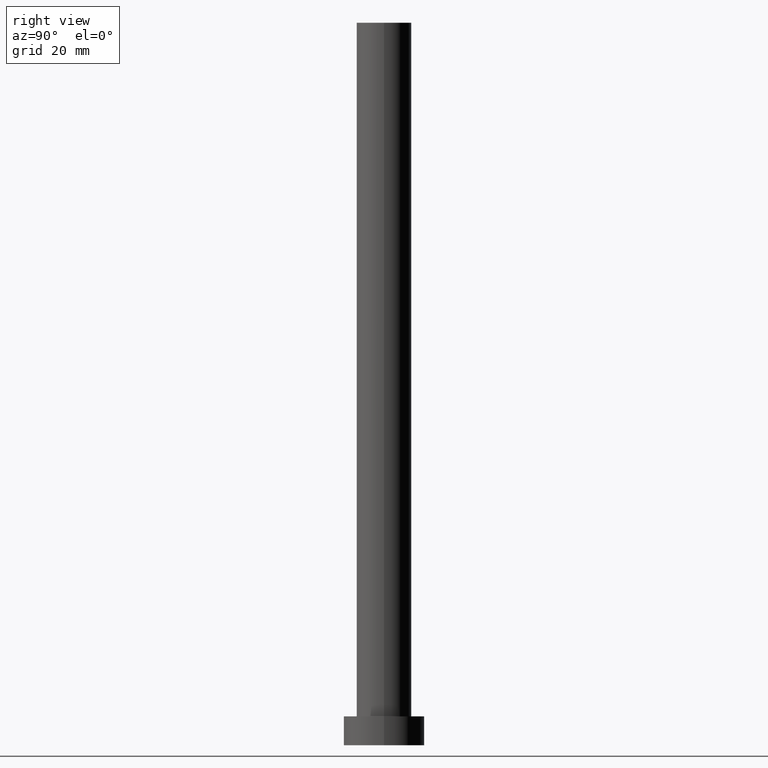
[diagram: clean part render]
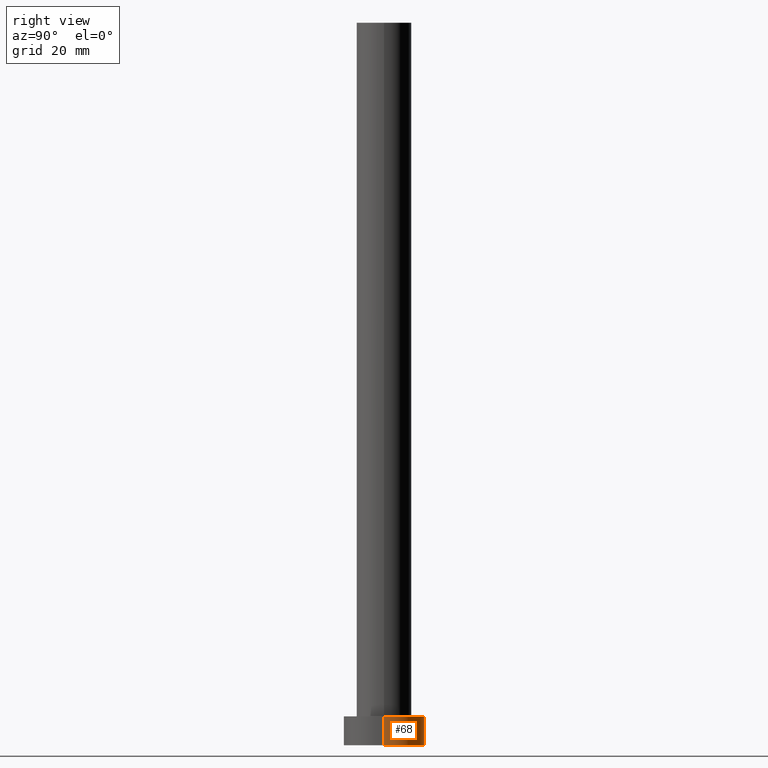
[diagram: same view with one face highlighted and labeled with its STEP entity id]
A machine part, right view. The second image highlights one B-rep face of the part: STEP entity #68.
In plain terms, the highlighted cylindrical surface (partial cylindrical patch) has radius 7 mm, axis along (-0, -0, -1).
Its self-contained STEP definition (entity closure, byte-faithful):
#1 = CIRCLE ( 'NONE', #116, 7.000000000000000000 ) ;
#14 = EDGE_LOOP ( 'NONE', ( #127, #221, #17, #163 ) ) ;
#17 = ORIENTED_EDGE ( 'NONE', *, *, #43, .T. ) ;
#23 = CARTESIAN_POINT ( 'NONE',  ( 7.000000000000000000, 8.572527594031473190E-16, 5.000000000000000000 ) ) ;
#25 = EDGE_CURVE ( 'NONE', #224, #106, #225, .T. ) ;
#26 = AXIS2_PLACEMENT_3D ( 'NONE', #36, #89, #85 ) ;
#33 = DIRECTION ( 'NONE',  ( 0.000000000000000000, 0.000000000000000000, 1.000000000000000000 ) ) ;
#36 = CARTESIAN_POINT ( 'NONE',  ( 0.000000000000000000, 0.000000000000000000, 5.000000000000000000 ) ) ;
#40 = CARTESIAN_POINT ( 'NONE',  ( -7.000000000000000000, 0.000000000000000000, 5.000000000000000000 ) ) ;
#43 = EDGE_CURVE ( 'NONE', #106, #227, #1, .T. ) ;
#46 = CIRCLE ( 'NONE', #208, 7.000000000000000000 ) ;
#57 = CARTESIAN_POINT ( 'NONE',  ( 7.000000000000000000, 8.572527594031473190E-16, 5.000000000000000000 ) ) ;
#66 = CYLINDRICAL_SURFACE ( 'NONE', #26, 7.000000000000000000 ) ;
#68 = ADVANCED_FACE ( 'NONE', ( #184 ), #66, .T. ) ;
#70 = DIRECTION ( 'NONE',  ( 0.000000000000000000, 0.000000000000000000, 1.000000000000000000 ) ) ;
#85 = DIRECTION ( 'NONE',  ( -1.000000000000000000, 0.000000000000000000, 0.000000000000000000 ) ) ;
#89 = DIRECTION ( 'NONE',  ( -0.000000000000000000, -0.000000000000000000, -1.000000000000000000 ) ) ;
#90 = VECTOR ( 'NONE', #180, 1000.000000000000000 ) ;
#97 = EDGE_CURVE ( 'NONE', #224, #182, #46, .T. ) ;
#106 = VERTEX_POINT ( 'NONE', #147 ) ;
#114 = CARTESIAN_POINT ( 'NONE',  ( -7.000000000000000000, 0.000000000000000000, 5.000000000000000000 ) ) ;
#116 = AXIS2_PLACEMENT_3D ( 'NONE', #203, #33, #255 ) ;
#127 = ORIENTED_EDGE ( 'NONE', *, *, #97, .F. ) ;
#147 = CARTESIAN_POINT ( 'NONE',  ( 7.000000000000000000, 8.572527594031473190E-16, 0.000000000000000000 ) ) ;
#151 = LINE ( 'NONE', #40, #155 ) ;
#155 = VECTOR ( 'NONE', #190, 1000.000000000000000 ) ;
#162 = DIRECTION ( 'NONE',  ( 1.000000000000000000, 0.000000000000000000, 0.000000000000000000 ) ) ;
#163 = ORIENTED_EDGE ( 'NONE', *, *, #207, .F. ) ;
#180 = DIRECTION ( 'NONE',  ( -0.000000000000000000, -0.000000000000000000, -1.000000000000000000 ) ) ;
#182 = VERTEX_POINT ( 'NONE', #114 ) ;
#184 = FACE_OUTER_BOUND ( 'NONE', #14, .T. ) ;
#190 = DIRECTION ( 'NONE',  ( -0.000000000000000000, -0.000000000000000000, -1.000000000000000000 ) ) ;
#203 = CARTESIAN_POINT ( 'NONE',  ( 0.000000000000000000, 0.000000000000000000, 0.000000000000000000 ) ) ;
#207 = EDGE_CURVE ( 'NONE', #182, #227, #151, .T. ) ;
#208 = AXIS2_PLACEMENT_3D ( 'NONE', #254, #70, #162 ) ;
#216 = CARTESIAN_POINT ( 'NONE',  ( -7.000000000000000000, 0.000000000000000000, 0.000000000000000000 ) ) ;
#221 = ORIENTED_EDGE ( 'NONE', *, *, #25, .T. ) ;
#224 = VERTEX_POINT ( 'NONE', #23 ) ;
#225 = LINE ( 'NONE', #57, #90 ) ;
#227 = VERTEX_POINT ( 'NONE', #216 ) ;
#254 = CARTESIAN_POINT ( 'NONE',  ( 0.000000000000000000, 0.000000000000000000, 5.000000000000000000 ) ) ;
#255 = DIRECTION ( 'NONE',  ( 1.000000000000000000, 0.000000000000000000, 0.000000000000000000 ) ) ;